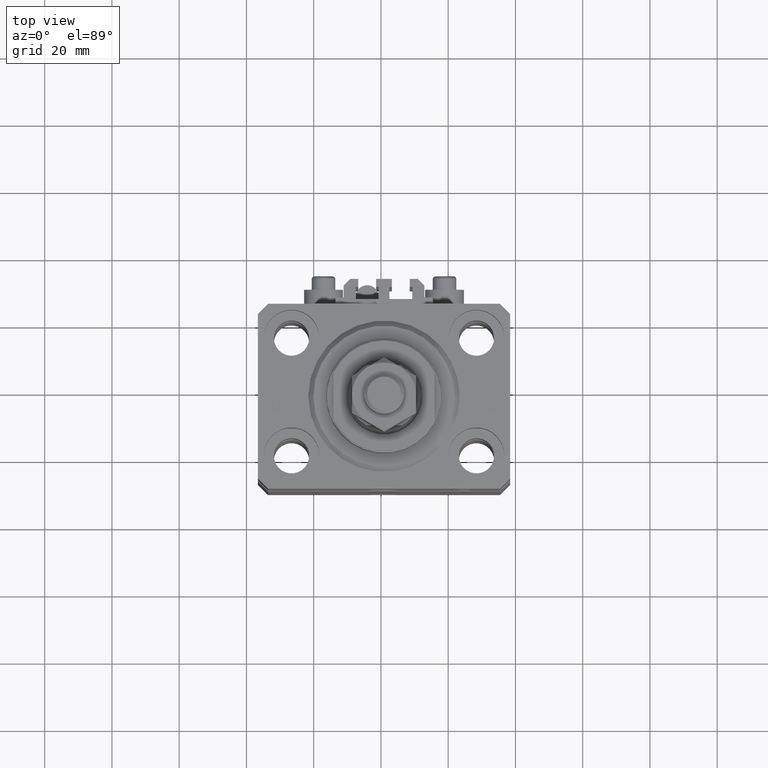
[diagram: clean part render]
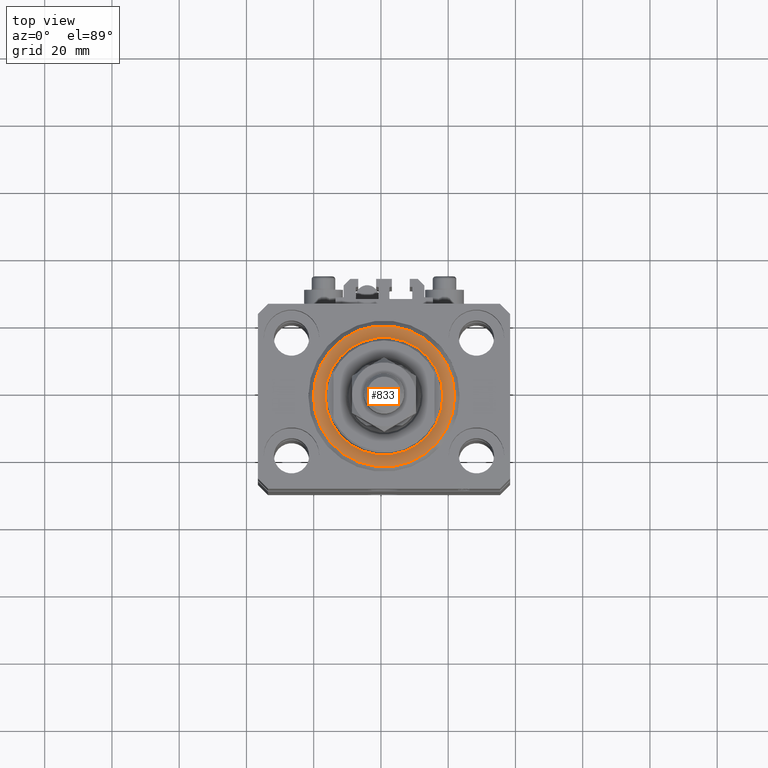
[diagram: same view with one face highlighted and labeled with its STEP entity id]
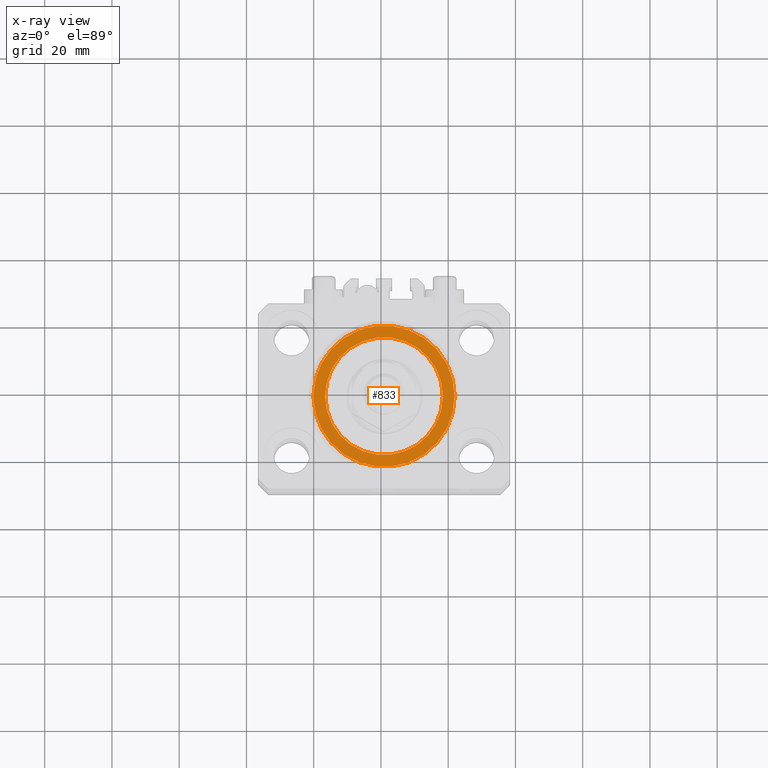
[diagram: x-ray of the same camera — body ghosted, the highlighted face saturated]
A machine part, top view. The second image highlights one B-rep face of the part: STEP entity #833.
The next image is the same camera in x-ray: the body ghosted, the highlighted face saturated — about 0% of this face is hidden behind the body in this view.
In plain terms, the highlighted planar face has unit normal (0, 0, -1).
Its self-contained STEP definition (entity closure, byte-faithful):
#29 = CIRCLE ( 'NONE', #48498, 17.50000000000000000 ) ;
#833 = ADVANCED_FACE ( 'NONE', ( #34122, #12228 ), #26690, .F. ) ;
#1524 = DIRECTION ( 'NONE',  ( 1.000000000000000000, 0.000000000000000000, 0.000000000000000000 ) ) ;
#2371 = CARTESIAN_POINT ( 'NONE',  ( 0.000000000000000000, 0.000000000000000000, 0.000000000000000000 ) ) ;
#2461 = AXIS2_PLACEMENT_3D ( 'NONE', #42765, #27388, #15945 ) ;
#3483 = AXIS2_PLACEMENT_3D ( 'NONE', #41229, #18889, #15133 ) ;
#5078 = CARTESIAN_POINT ( 'NONE',  ( -20.99999999999995381, 2.663606788145490261E-15, 0.000000000000000000 ) ) ;
#5897 = VERTEX_POINT ( 'NONE', #35670 ) ;
#8978 = CARTESIAN_POINT ( 'NONE',  ( 0.000000000000000000, 0.000000000000000000, 0.000000000000000000 ) ) ;
#9541 = CARTESIAN_POINT ( 'NONE',  ( 17.50000000000000000, 0.000000000000000000, -2.168404344971008868E-16 ) ) ;
#10714 = ORIENTED_EDGE ( 'NONE', *, *, #45068, .T. ) ;
#11112 = ORIENTED_EDGE ( 'NONE', *, *, #17941, .T. ) ;
#11808 = EDGE_CURVE ( 'NONE', #5897, #14261, #38148, .T. ) ;
#12228 = FACE_OUTER_BOUND ( 'NONE', #12663, .T. ) ;
#12663 = EDGE_LOOP ( 'NONE', ( #17900, #26721 ) ) ;
#14261 = VERTEX_POINT ( 'NONE', #5078 ) ;
#15133 = DIRECTION ( 'NONE',  ( 1.000000000000000000, 0.000000000000000000, 0.000000000000000000 ) ) ;
#15697 = CARTESIAN_POINT ( 'NONE',  ( -17.50000000000000000, 2.143131898507868643E-15, -2.168404344971008868E-16 ) ) ;
#15829 = EDGE_CURVE ( 'NONE', #14261, #5897, #36854, .T. ) ;
#15945 = DIRECTION ( 'NONE',  ( 1.000000000000000000, 0.000000000000000000, 0.000000000000000000 ) ) ;
#15954 = DIRECTION ( 'NONE',  ( 0.000000000000000000, 0.000000000000000000, 1.000000000000000000 ) ) ;
#16218 = DIRECTION ( 'NONE',  ( 1.000000000000000000, 0.000000000000000000, -0.000000000000000000 ) ) ;
#17900 = ORIENTED_EDGE ( 'NONE', *, *, #11808, .T. ) ;
#17941 = EDGE_CURVE ( 'NONE', #20009, #31534, #29, .T. ) ;
#18889 = DIRECTION ( 'NONE',  ( 0.000000000000000000, 0.000000000000000000, 1.000000000000000000 ) ) ;
#20009 = VERTEX_POINT ( 'NONE', #9541 ) ;
#21043 = DIRECTION ( 'NONE',  ( 1.000000000000000000, 0.000000000000000000, 0.000000000000000000 ) ) ;
#25137 = EDGE_LOOP ( 'NONE', ( #11112, #10714 ) ) ;
#25777 = CIRCLE ( 'NONE', #3483, 17.50000000000000000 ) ;
#26690 = PLANE ( 'NONE',  #41053 ) ;
#26721 = ORIENTED_EDGE ( 'NONE', *, *, #15829, .T. ) ;
#27388 = DIRECTION ( 'NONE',  ( -0.000000000000000000, -0.000000000000000000, -1.000000000000000000 ) ) ;
#31534 = VERTEX_POINT ( 'NONE', #15697 ) ;
#32455 = DIRECTION ( 'NONE',  ( -0.000000000000000000, -0.000000000000000000, -1.000000000000000000 ) ) ;
#34122 = FACE_BOUND ( 'NONE', #25137, .T. ) ;
#35090 = DIRECTION ( 'NONE',  ( 0.000000000000000000, 0.000000000000000000, 1.000000000000000000 ) ) ;
#35670 = CARTESIAN_POINT ( 'NONE',  ( 20.99999999999995381, 0.000000000000000000, 0.000000000000000000 ) ) ;
#36854 = CIRCLE ( 'NONE', #42356, 20.99999999999995381 ) ;
#38148 = CIRCLE ( 'NONE', #2461, 20.99999999999995381 ) ;
#41053 = AXIS2_PLACEMENT_3D ( 'NONE', #42548, #35090, #16218 ) ;
#41229 = CARTESIAN_POINT ( 'NONE',  ( 0.000000000000000000, 0.000000000000000000, 0.000000000000000000 ) ) ;
#42356 = AXIS2_PLACEMENT_3D ( 'NONE', #2371, #32455, #21043 ) ;
#42548 = CARTESIAN_POINT ( 'NONE',  ( 0.000000000000000000, 0.000000000000000000, 0.000000000000000000 ) ) ;
#42765 = CARTESIAN_POINT ( 'NONE',  ( 0.000000000000000000, 0.000000000000000000, 0.000000000000000000 ) ) ;
#45068 = EDGE_CURVE ( 'NONE', #31534, #20009, #25777, .T. ) ;
#48498 = AXIS2_PLACEMENT_3D ( 'NONE', #8978, #15954, #1524 ) ;